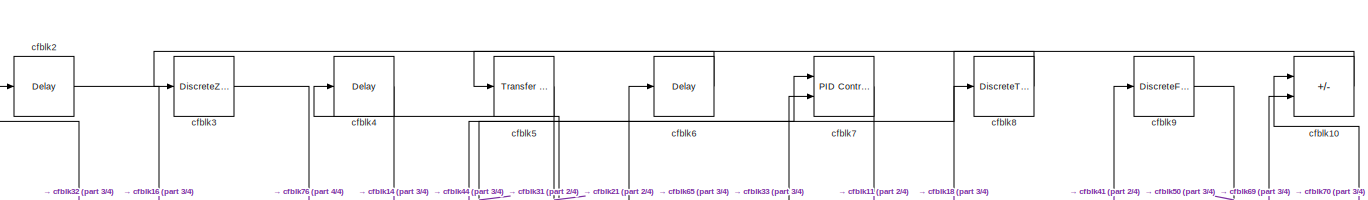
[diagram: root canvas - part 1/4, full width, top band]
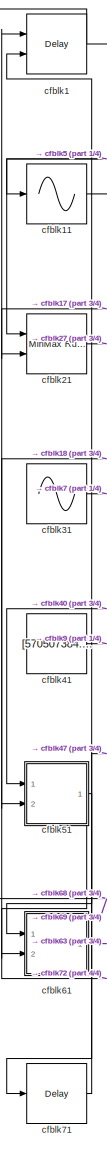
[diagram: root canvas - part 2/4, left side, full height]
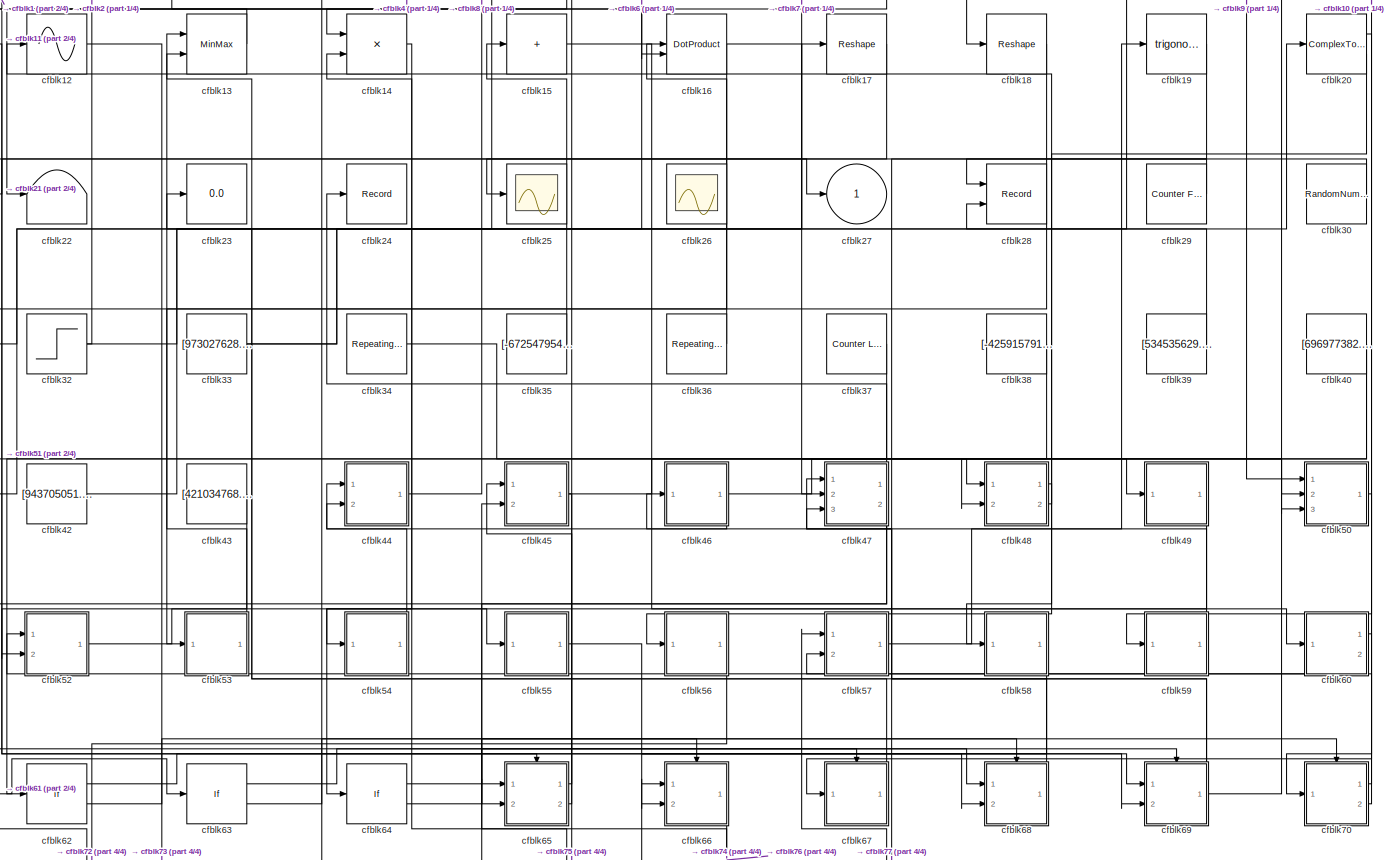
[diagram: root canvas - part 3/4, full width, middle band]
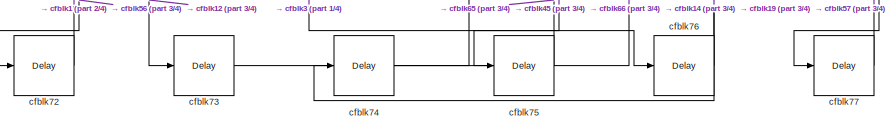
[diagram: root canvas - part 4/4, bottom center region]
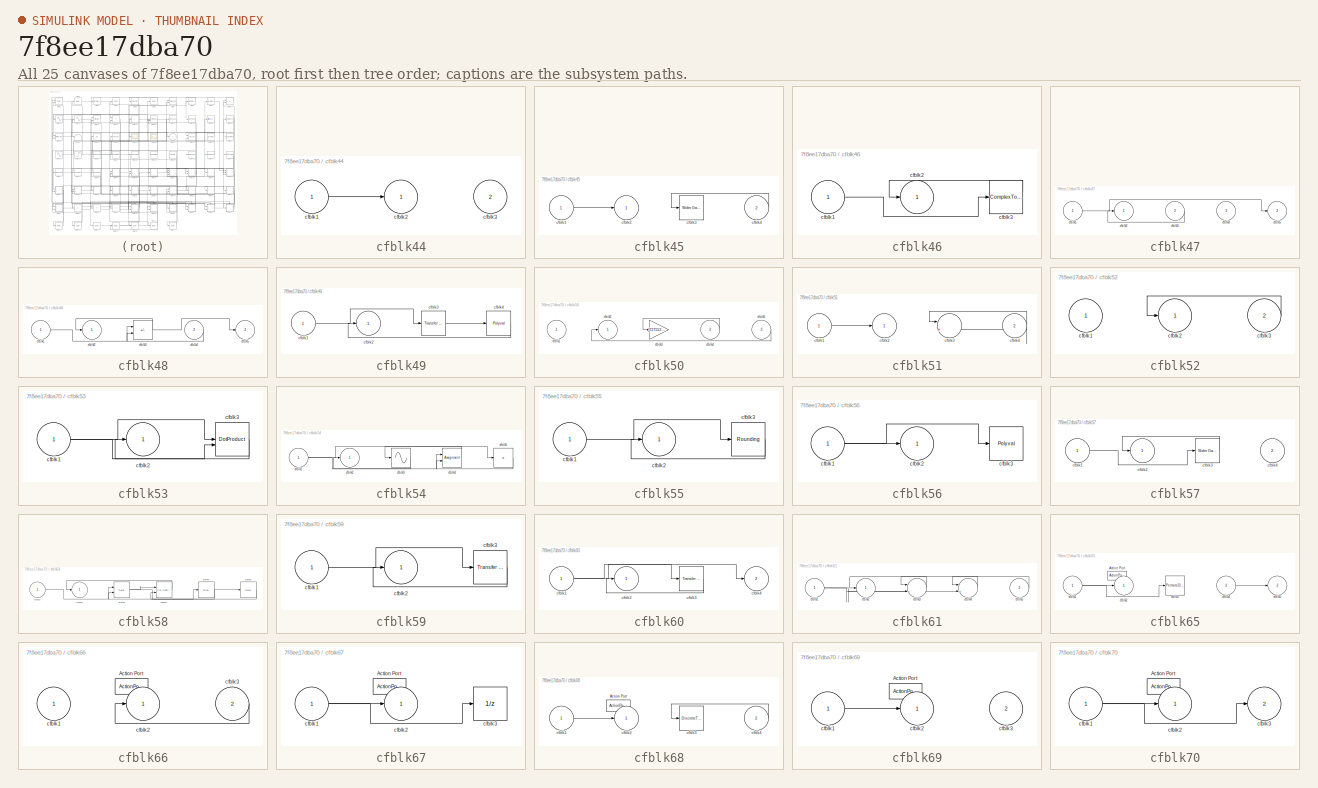
[diagram: thumbnail index - all 25 canvases of the model, root first then tree order]
MODEL slx_7f8ee17dba70
KIND model
CONFIG AbsTol = auto
CONFIG EnableMultiTasking = off
CONFIG FixedStep = auto
CONFIG MaxStep = auto
CONFIG MinStep = auto
CONFIG RelTol = 1e-3
CONFIG SampleTimeConstraint = Unconstrained
CONFIG SolverName = VariableStepAuto
CONFIG StartTime = 0.0
CONFIG StopTime = 10.0
BLOCK [Delay] cfblk1
  DelayLengthSource = Input port
  InputPortMap = u0,p1
  Ports = [2, 1]
  SampleTime = 1
BLOCK [Sum] cfblk10
  IconShape = rectangular
  Inputs = -+
  Ports = [2, 1]
BLOCK [Sin] cfblk11
  Ports = [1, 1]
  SampleTime = 0
  TimeSource = Use external signal
BLOCK [Sin] cfblk12
  Ports = [1, 1]
  SampleTime = 0
  TimeSource = Use external signal
BLOCK [MinMax] cfblk13
  Inputs = 2
  Ports = [2, 1]
BLOCK [Product] cfblk14
  Ports = [2, 1]
BLOCK [Sum] cfblk15
  IconShape = rectangular
  Inputs = +
  Ports = [1, 1]
BLOCK [DotProduct] cfblk16
  OutDataTypeStr = Inherit: Inherit via internal rule
BLOCK [Reshape] cfblk17
  Ports = [1, 1]
BLOCK [Reshape] cfblk18
  Ports = [1, 1]
BLOCK [Trigonometry] cfblk19
  Ports = [1, 1]
BLOCK [Delay] cfblk2
  InputPortMap = u0
  Ports = [1, 1]
  SampleTime = 1
BLOCK [ComplexToRealImag] cfblk20
  Ports = [1, 2]
BLOCK [Reference] cfblk21  REF=simulink/Math
Operations/MinMax
Running
Resettable
  Ports = [2, 1]
  SourceBlock = simulink/Math\nOperations/MinMax\nRunning\nResettable
  SourceProductBaseCode = SL
  SourceType = MinMax Running Resettable
BLOCK [Terminator] cfblk22
BLOCK [Display] cfblk23
  Decimation = 1
  Ports = [1]
BLOCK [Record] cfblk24
  FileSettingsInternal = {"entries":[{"content":{"excelSettings":{"content":{},"type":"Streamout.ExcelSettings"}},"type":"Streamout.FileSettingStorage","uuid":"f8e03bbd-3925-4cbe-a2d8-1c15d8116227"}],"packageUris":["http://schema.mathworks.com/mf0/streamout_blocks/R2020a"],"version":"1.0"}
  Ports = [1]
  SignalsInternal = {"entries":[{"content":{"signals":[{"content":{"blockPath":["sampleModel298/cfblk24"],"channel":[],"dimensions":[1],"domain":"sampleModel298/cfblk24","lineColor":"#a2142f","plots":[1],"port":1,"sid":[""],"signalID":12860,"signalName":"cfblk47:1"},"type":"RecordBlkView.Signal","uuid":"11e5b281-7313-45d0-8552-5ee48f4d8115"}]},"type":"RecordBlkView.InputSignals","uuid":"8eee72e8-d15a-4497-b3c0-09b01b...<+100ch>
  VisualizationBindings = {"sparklinesplugin":{"info":[{"bindingParametersList":[],"subplotID":1}]}}
BLOCK [Scope] cfblk25
  Floating = off
  NumInputPorts = 1
  Ports = [1]
BLOCK [Scope] cfblk26
  Floating = on
  NumInputPorts = 1
  Ports = []
BLOCK [Outport] cfblk27
BLOCK [Record] cfblk28
  CompatibilityTag = XY
  FileSettingsInternal = {"entries":[{"content":{"excelSettings":{"content":{},"type":"Streamout.ExcelSettings"}},"type":"Streamout.FileSettingStorage","uuid":"aa3ee1ba-3106-412b-81ca-2127dd02a330"}],"packageUris":["http://schema.mathworks.com/mf0/streamout_blocks/R2020a"],"version":"1.0"}
  Layout = [1 1]
  Ports = [2]
  SignalsInternal = {"entries":[{"content":{"signals":[{"content":{"blockPath":["sampleModel298/cfblk28"],"channel":[],"dimensions":[1],"domain":"sampleModel298/cfblk28","lineColor":"#a2142f","plots":[1],"port":1,"sid":[""],"signalID":12864,"signalName":"cfblk30"},"type":"RecordBlkView.Signal","uuid":"5ab1b331-6bbc-4e8d-9462-f5e53011d17e"},{"content":{"blockPath":["sampleModel298/cfblk28"],"channel":[],"dimensions":[...<+385ch>
  VisualizationBindings = {"xyplotplugin":{"info":[{"series":[{"bindingParametersList":[{"parameter":"X-Axis","signalID":12864,"signalName":"cfblk30"},{"parameter":"Y-Axis","signalID":12868,"signalName":"cfblk39"}],"seriesID":55334}],"subplotID":1}]}}
BLOCK [Reference] cfblk29  REF=simulink/Sources/Counter
Free-Running
  Ports = [0, 1]
  SourceBlock = simulink/Sources/Counter\nFree-Running
  SourceProductBaseCode = SL
  SourceType = Counter Free-Running
BLOCK [DiscreteZeroPole] cfblk3
  Gain = 1
  Poles = [0 0.5]
BLOCK [RandomNumber] cfblk30
  Mean = [-77149.220000]
  SampleTime = 0.1
  Seed = [340606104.000000]
  Variance = [41680.275805]
BLOCK [Sin] cfblk31
  Amplitude = [967904790.389444]
  Bias = [-694401713.764800]
  Ports = [0, 1]
  SampleTime = 0
BLOCK [Step] cfblk32
  After = [850693744.630323]
  Before = [-871235636.671696]
  SampleTime = 0
  Time = [28.000000]
BLOCK [Constant] cfblk33
  SampleTime = 1
  Value = [973027628.577768]
BLOCK [Reference] cfblk34  REF=simulink/Sources/Repeating
Sequence
  Ports = [0, 1]
  SourceBlock = simulink/Sources/Repeating\nSequence
  SourceProductBaseCode = SL
  SourceType = Repeating table
BLOCK [Constant] cfblk35
  SampleTime = 1
  Value = [-672547954.246681]
BLOCK [Reference] cfblk36  REF=simulink/Sources/Repeating
Sequence
Stair
  Ports = [0, 1]
  SourceBlock = simulink/Sources/Repeating\nSequence\nStair
  SourceProductBaseCode = SL
  SourceType = Repeating Sequence Stair
BLOCK [Reference] cfblk37  REF=simulink/Sources/Counter
Limited
  Ports = [0, 1]
  SourceBlock = simulink/Sources/Counter\nLimited
  SourceProductBaseCode = SL
  SourceType = Counter Limited
BLOCK [Constant] cfblk38
  SampleTime = 1
  Value = [-425915791.138406]
BLOCK [Constant] cfblk39
  SampleTime = 1
  Value = [534535629.068639]
BLOCK [Delay] cfblk4
  InputPortMap = u0
  Ports = [1, 1]
  SampleTime = 1
BLOCK [Constant] cfblk40
  SampleTime = 1
  Value = [696977382.694791]
BLOCK [Constant] cfblk41
  SampleTime = 1
  Value = [570507384.142809]
BLOCK [Constant] cfblk42
  SampleTime = 1
  Value = [943705051.567858]
BLOCK [Constant] cfblk43
  SampleTime = 1
  Value = [421034768.829689]
BLOCK [SubSystem] cfblk44
  Ports = [2, 1]
  RequestExecContextInheritance = off
BLOCK [Inport] cfblk44/cfblk1
BLOCK [Outport] cfblk44/cfblk2
BLOCK [Inport] cfblk44/cfblk3
  Port = 2
BLOCK [SubSystem] cfblk45
  Ports = [2, 1]
  RequestExecContextInheritance = off
BLOCK [Inport] cfblk45/cfblk1
BLOCK [Outport] cfblk45/cfblk2
BLOCK [Reference] cfblk45/cfblk3  REF=simulink/Math
Operations/Slider
Gain
  Ports = [1, 1]
  SourceBlock = simulink/Math\nOperations/Slider\nGain
  SourceProductBaseCode = SL
  SourceType = Slider Gain
BLOCK [Inport] cfblk45/cfblk4
  Port = 2
BLOCK [SubSystem] cfblk46
  Ports = [1, 1]
  RequestExecContextInheritance = off
BLOCK [Inport] cfblk46/cfblk1
BLOCK [Outport] cfblk46/cfblk2
BLOCK [ComplexToMagnitudeAngle] cfblk46/cfblk3
  Ports = [1, 2]
BLOCK [SubSystem] cfblk47
  Ports = [3, 2]
  RequestExecContextInheritance = off
BLOCK [Inport] cfblk47/cfblk1
BLOCK [Outport] cfblk47/cfblk2
BLOCK [Inport] cfblk47/cfblk3
  Port = 2
BLOCK [Inport] cfblk47/cfblk4
  Port = 3
BLOCK [Outport] cfblk47/cfblk5
  Port = 2
BLOCK [SubSystem] cfblk48
  Ports = [2, 2]
  RequestExecContextInheritance = off
BLOCK [Inport] cfblk48/cfblk1
BLOCK [Outport] cfblk48/cfblk2
BLOCK [Sum] cfblk48/cfblk3
  IconShape = rectangular
  Inputs = +-
  Ports = [2, 1]
BLOCK [Inport] cfblk48/cfblk4
  Port = 2
BLOCK [Outport] cfblk48/cfblk5
  Port = 2
BLOCK [SubSystem] cfblk49
  Ports = [1, 1]
  RequestExecContextInheritance = off
BLOCK [Inport] cfblk49/cfblk1
BLOCK [Outport] cfblk49/cfblk2
BLOCK [Reference] cfblk49/cfblk3  REF=simulink/Discrete/Transfer Fcn
Real Zero
  Ports = [1, 1]
  SourceBlock = simulink/Discrete/Transfer Fcn\nReal Zero
  SourceProductBaseCode = SL
  SourceType = Transfer Fcn Real Zero
BLOCK [Polyval] cfblk49/cfblk4
  Coefs = [ +2.081618890e-019, -1.441693666e-014, +4.719686976e-010, -8.536869453e-006, +1.621573104e-001, -8.087801117e+001 ]
BLOCK [Reference] cfblk5  REF=simulink/Discrete/Transfer Fcn
Real Zero
  Ports = [1, 1]
  SourceBlock = simulink/Discrete/Transfer Fcn\nReal Zero
  SourceProductBaseCode = SL
  SourceType = Transfer Fcn Real Zero
BLOCK [SubSystem] cfblk50
  Ports = [3, 1]
  RequestExecContextInheritance = off
BLOCK [Inport] cfblk50/cfblk1
BLOCK [Outport] cfblk50/cfblk2
BLOCK [Gain] cfblk50/cfblk3
  Gain = [727553593.715961]
BLOCK [Inport] cfblk50/cfblk4
  Port = 2
BLOCK [Inport] cfblk50/cfblk5
  Port = 3
BLOCK [SubSystem] cfblk51
  Ports = [2, 1]
  RequestExecContextInheritance = off
BLOCK [Inport] cfblk51/cfblk1
BLOCK [Outport] cfblk51/cfblk2
BLOCK [Sum] cfblk51/cfblk3
  Inputs = |++
  Ports = [2, 1]
BLOCK [Inport] cfblk51/cfblk4
  Port = 2
BLOCK [SubSystem] cfblk52
  Ports = [2, 1]
  RequestExecContextInheritance = off
BLOCK [Inport] cfblk52/cfblk1
BLOCK [Outport] cfblk52/cfblk2
BLOCK [Inport] cfblk52/cfblk3
  Port = 2
BLOCK [SubSystem] cfblk53
  Ports = [1, 1]
  RequestExecContextInheritance = off
BLOCK [Inport] cfblk53/cfblk1
BLOCK [Outport] cfblk53/cfblk2
BLOCK [DotProduct] cfblk53/cfblk3
  OutDataTypeStr = Inherit: Inherit via internal rule
BLOCK [SubSystem] cfblk54
  Ports = [1, 1]
  RequestExecContextInheritance = off
BLOCK [Inport] cfblk54/cfblk1
BLOCK [Outport] cfblk54/cfblk2
BLOCK [Sin] cfblk54/cfblk3
  Ports = [1, 1]
  SampleTime = 0
  TimeSource = Use external signal
BLOCK [Assignment] cfblk54/cfblk4
  DiagnosticForDimensions = Warning
  IndexOptions = Index vector (dialog)
  Indices = 1
  OutputSizes = 1
  Ports = [2, 1]
BLOCK [Product] cfblk54/cfblk5
  Inputs = *
  Ports = [1, 1]
BLOCK [SubSystem] cfblk55
  Ports = [1, 1]
  RequestExecContextInheritance = off
BLOCK [Inport] cfblk55/cfblk1
BLOCK [Outport] cfblk55/cfblk2
BLOCK [Rounding] cfblk55/cfblk3
BLOCK [SubSystem] cfblk56
  Ports = [1, 1]
  RequestExecContextInheritance = off
BLOCK [Inport] cfblk56/cfblk1
BLOCK [Outport] cfblk56/cfblk2
BLOCK [Polyval] cfblk56/cfblk3
  Coefs = [ +2.081618890e-019, -1.441693666e-014, +4.719686976e-010, -8.536869453e-006, +1.621573104e-001, -8.087801117e+001 ]
BLOCK [SubSystem] cfblk57
  Ports = [2, 1]
  RequestExecContextInheritance = off
BLOCK [Inport] cfblk57/cfblk1
BLOCK [Outport] cfblk57/cfblk2
BLOCK [Reference] cfblk57/cfblk3  REF=simulink/Math
Operations/Slider
Gain
  Ports = [1, 1]
  SourceBlock = simulink/Math\nOperations/Slider\nGain
  SourceProductBaseCode = SL
  SourceType = Slider Gain
BLOCK [Inport] cfblk57/cfblk4
  Port = 2
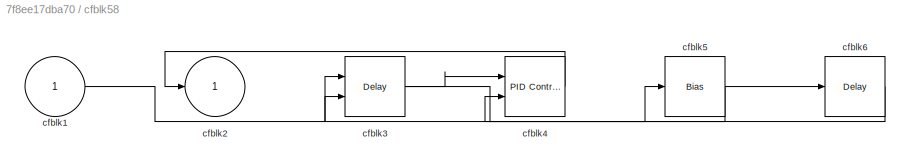
BLOCK [SubSystem] cfblk58
  Ports = [1, 1]
  RequestExecContextInheritance = off
BLOCK [Inport] cfblk58/cfblk1
BLOCK [Outport] cfblk58/cfblk2
BLOCK [Delay] cfblk58/cfblk3
  DelayLengthSource = Input port
  InputPortMap = u0,p1
  Ports = [2, 1]
  SampleTime = 1
BLOCK [Reference] cfblk58/cfblk4  REF=slpidlib/PID Controller (2DOF)
  Ports = [2, 1]
  SourceBlock = slpidlib/PID Controller (2DOF)
  SourceProductBaseCode = SL
  SourceType = PID 2dof
BLOCK [Bias] cfblk58/cfblk5
  Bias = [-670771605.954551]
  SaturateOnIntegerOverflow = off
BLOCK [Delay] cfblk58/cfblk6
  InputPortMap = u0
  Ports = [1, 1]
  SampleTime = 1
BLOCK [SubSystem] cfblk59
  Ports = [1, 1]
  RequestExecContextInheritance = off
BLOCK [Inport] cfblk59/cfblk1
BLOCK [Outport] cfblk59/cfblk2
BLOCK [Reference] cfblk59/cfblk3  REF=simulink/Discrete/Transfer Fcn
First Order
  Ports = [1, 1]
  SourceBlock = simulink/Discrete/Transfer Fcn\nFirst Order
  SourceProductBaseCode = SL
  SourceType = First Order Transfer Fcn
BLOCK [Delay] cfblk6
  InputPortMap = u0
  Ports = [1, 1]
  SampleTime = 1
BLOCK [SubSystem] cfblk60
  Ports = [1, 2]
  RequestExecContextInheritance = off
BLOCK [Inport] cfblk60/cfblk1
BLOCK [Outport] cfblk60/cfblk2
BLOCK [Reference] cfblk60/cfblk3  REF=simulink/Discrete/Transfer Fcn
Real Zero
  Ports = [1, 1]
  SourceBlock = simulink/Discrete/Transfer Fcn\nReal Zero
  SourceProductBaseCode = SL
  SourceType = Transfer Fcn Real Zero
BLOCK [Outport] cfblk60/cfblk4
  Port = 2
BLOCK [SubSystem] cfblk61
  Ports = [2, 1]
  RequestExecContextInheritance = off
BLOCK [Inport] cfblk61/cfblk1
BLOCK [Outport] cfblk61/cfblk2
BLOCK [Sum] cfblk61/cfblk3
  Inputs = |++
  Ports = [2, 1]
BLOCK [Sum] cfblk61/cfblk4
  Inputs = |++
  Ports = [2, 1]
BLOCK [Inport] cfblk61/cfblk5
  Port = 2
BLOCK [If] cfblk62
  IfExpression = u1 >= 0
  Ports = [1, 2]
  SampleTime = 1
BLOCK [If] cfblk63
  IfExpression = u1 >= 0
  Ports = [1, 2]
  SampleTime = 1
BLOCK [If] cfblk64
  IfExpression = u1 >= 0
  Ports = [1, 2]
  SampleTime = 1
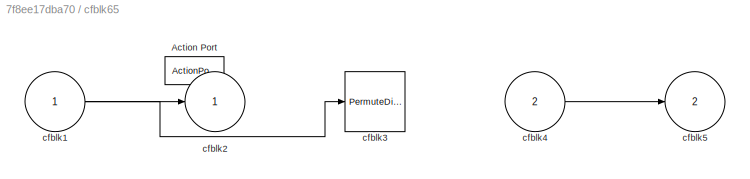
BLOCK [SubSystem] cfblk65
  Ports = [2, 2, 0, 0, 0, 0, 0, 1]
  RequestExecContextInheritance = off
  TreatAsAtomicUnit = on
BLOCK [ActionPort] cfblk65/Action Port
  ActionPortLabel = if(u1 >= 0)
BLOCK [Inport] cfblk65/cfblk1
BLOCK [Outport] cfblk65/cfblk2
BLOCK [PermuteDimensions] cfblk65/cfblk3
BLOCK [Inport] cfblk65/cfblk4
  Port = 2
BLOCK [Outport] cfblk65/cfblk5
  Port = 2
BLOCK [SubSystem] cfblk66
  Ports = [2, 1, 0, 0, 0, 0, 0, 1]
  RequestExecContextInheritance = off
  TreatAsAtomicUnit = on
BLOCK [ActionPort] cfblk66/Action Port
  ActionPortLabel = else
BLOCK [Inport] cfblk66/cfblk1
BLOCK [Outport] cfblk66/cfblk2
BLOCK [Inport] cfblk66/cfblk3
  Port = 2
BLOCK [SubSystem] cfblk67
  Ports = [1, 1, 0, 0, 0, 0, 0, 1]
  RequestExecContextInheritance = off
  TreatAsAtomicUnit = on
BLOCK [ActionPort] cfblk67/Action Port
  ActionPortLabel = if(u1 >= 0)
BLOCK [Inport] cfblk67/cfblk1
BLOCK [Outport] cfblk67/cfblk2
BLOCK [UnitDelay] cfblk67/cfblk3
  HasFrameUpgradeWarning = on
  SampleTime = -1
BLOCK [SubSystem] cfblk68
  Ports = [2, 1, 0, 0, 0, 0, 0, 1]
  RequestExecContextInheritance = off
  TreatAsAtomicUnit = on
BLOCK [ActionPort] cfblk68/Action Port
  ActionPortLabel = else
BLOCK [Inport] cfblk68/cfblk1
BLOCK [Outport] cfblk68/cfblk2
BLOCK [DiscreteTransferFcn] cfblk68/cfblk3
  InputPortMap = u0
  Ports = [1, 1]
BLOCK [Inport] cfblk68/cfblk4
  Port = 2
BLOCK [SubSystem] cfblk69
  Ports = [2, 1, 0, 0, 0, 0, 0, 1]
  RequestExecContextInheritance = off
  TreatAsAtomicUnit = on
BLOCK [ActionPort] cfblk69/Action Port
  ActionPortLabel = if(u1 >= 0)
BLOCK [Inport] cfblk69/cfblk1
BLOCK [Outport] cfblk69/cfblk2
BLOCK [Inport] cfblk69/cfblk3
  Port = 2
BLOCK [Reference] cfblk7  REF=slpidlib/PID Controller (2DOF)
  Ports = [2, 1]
  SourceBlock = slpidlib/PID Controller (2DOF)
  SourceProductBaseCode = SL
  SourceType = PID 2dof
BLOCK [SubSystem] cfblk70
  Ports = [1, 2, 0, 0, 0, 0, 0, 1]
  RequestExecContextInheritance = off
  TreatAsAtomicUnit = on
BLOCK [ActionPort] cfblk70/Action Port
  ActionPortLabel = else
BLOCK [Inport] cfblk70/cfblk1
BLOCK [Outport] cfblk70/cfblk2
BLOCK [Outport] cfblk70/cfblk3
  Port = 2
BLOCK [Delay] cfblk71
  InputPortMap = u0
  Ports = [1, 1]
  SampleTime = 1
BLOCK [Delay] cfblk72
  InputPortMap = u0
  Ports = [1, 1]
  SampleTime = 1
BLOCK [Delay] cfblk73
  InputPortMap = u0
  Ports = [1, 1]
  SampleTime = 1
BLOCK [Delay] cfblk74
  InputPortMap = u0
  Ports = [1, 1]
  SampleTime = 1
BLOCK [Delay] cfblk75
  InputPortMap = u0
  Ports = [1, 1]
  SampleTime = 1
BLOCK [Delay] cfblk76
  InputPortMap = u0
  Ports = [1, 1]
  SampleTime = 1
BLOCK [Delay] cfblk77
  InputPortMap = u0
  Ports = [1, 1]
  SampleTime = 1
BLOCK [DiscreteTransferFcn] cfblk8
  InputPortMap = u0
  Ports = [1, 1]
  SampleTime = 1
BLOCK [DiscreteFir] cfblk9
  InputPortMap = u0
  OutputPortMap = o0
  Ports = [1, 1]
  SampleTime = 1
LINE cfblk10:1 -> cfblk18:1
LINE cfblk11:1 -> cfblk69:1
LINE cfblk12:1 -> cfblk73:1
LINE cfblk13:1 -> cfblk22:1
LINE cfblk14:1 -> cfblk54:1
LINE cfblk15:1 -> cfblk60:1
NET cfblk16:1 -> cfblk50:3, cfblk53:1
LINE cfblk17:1 -> cfblk21:2
LINE cfblk18:1 -> cfblk51:2
LINE cfblk19:1 -> cfblk77:1
NET cfblk1:1 -> cfblk68:1, cfblk69:2
LINE cfblk20:1 -> cfblk59:1
LINE cfblk20:2 -> cfblk58:1
LINE cfblk21:1 -> cfblk27:1
LINE cfblk29:1 -> cfblk25:1
LINE cfblk2:1 -> cfblk16:2
LINE cfblk30:1 -> cfblk28:1
LINE cfblk31:1 -> cfblk7:1
NET cfblk32:1 -> cfblk17:1, cfblk2:1
NET cfblk33:1 -> cfblk6:1, cfblk7:2
LINE cfblk34:1 -> cfblk50:2
LINE cfblk35:1 -> cfblk15:1
LINE cfblk36:1 -> cfblk16:1
LINE cfblk37:1 -> cfblk62:1
LINE cfblk38:1 -> cfblk48:2
LINE cfblk39:1 -> cfblk28:2
LINE cfblk3:1 -> cfblk76:1
NET cfblk40:1 -> cfblk47:2, cfblk51:1
LINE cfblk41:1 -> cfblk9:1
LINE cfblk42:1 -> cfblk20:1
LINE cfblk43:1 -> cfblk52:2
LINE cfblk44/cfblk1:1 -> cfblk44/cfblk2:1
LINE cfblk44:1 -> cfblk8:1
LINE cfblk45/cfblk1:1 -> cfblk45/cfblk2:1
LINE cfblk45/cfblk4:1 -> cfblk45/cfblk3:1
NET cfblk45:1 -> cfblk48:1, cfblk75:1
LINE cfblk46/cfblk1:1 -> cfblk46/cfblk3:1
LINE cfblk46/cfblk3:1 -> cfblk46/cfblk2:1
NET cfblk46:1 -> cfblk44:2, cfblk49:1
LINE cfblk47/cfblk1:1 -> cfblk47/cfblk5:1
LINE cfblk47/cfblk3:1 -> cfblk47/cfblk2:1
LINE cfblk47:1 -> cfblk24:1
NET cfblk47:2 -> cfblk61:1, cfblk65:2
LINE cfblk48/cfblk1:1 -> cfblk48/cfblk3:1
NET cfblk48/cfblk3:1 -> cfblk48/cfblk2:1, cfblk48/cfblk5:1
LINE cfblk48/cfblk4:1 -> cfblk48/cfblk3:2
LINE cfblk48:1 -> cfblk56:1
LINE cfblk48:2 -> cfblk12:1
LINE cfblk49/cfblk1:1 -> cfblk49/cfblk3:1
LINE cfblk49/cfblk3:1 -> cfblk49/cfblk4:1
LINE cfblk49/cfblk4:1 -> cfblk49/cfblk2:1
LINE cfblk49:1 -> cfblk64:1
LINE cfblk4:1 -> cfblk14:1
LINE cfblk50/cfblk4:1 -> cfblk50/cfblk3:1
LINE cfblk50/cfblk5:1 -> cfblk50/cfblk2:1
LINE cfblk50:1 -> cfblk70:1
LINE cfblk51/cfblk1:1 -> cfblk51/cfblk2:1
NET cfblk51/cfblk4:1 -> cfblk51/cfblk3:1, cfblk51/cfblk3:2
NET cfblk51:1 -> cfblk61:2, cfblk71:1
LINE cfblk52/cfblk3:1 -> cfblk52/cfblk2:1
LINE cfblk52:1 -> cfblk55:1
NET cfblk53/cfblk1:1 -> cfblk53/cfblk3:1, cfblk53/cfblk3:2
LINE cfblk53/cfblk3:1 -> cfblk53/cfblk2:1
LINE cfblk53:1 -> cfblk13:1
NET cfblk54/cfblk1:1 -> cfblk54/cfblk4:2, cfblk54/cfblk5:1
LINE cfblk54/cfblk3:1 -> cfblk54/cfblk2:1
LINE cfblk54/cfblk4:1 -> cfblk54/cfblk3:1
LINE cfblk54/cfblk5:1 -> cfblk54/cfblk4:1
LINE cfblk54:1 -> cfblk44:1
LINE cfblk55/cfblk1:1 -> cfblk55/cfblk3:1
LINE cfblk55/cfblk3:1 -> cfblk55/cfblk2:1
LINE cfblk55:1 -> cfblk68:2
NET cfblk56/cfblk1:1 -> cfblk56/cfblk2:1, cfblk56/cfblk3:1
LINE cfblk56:1 -> cfblk72:1
LINE cfblk57/cfblk1:1 -> cfblk57/cfblk3:1
LINE cfblk57/cfblk3:1 -> cfblk57/cfblk2:1
LINE cfblk57:1 -> cfblk19:1
LINE cfblk58/cfblk1:1 -> cfblk58/cfblk3:1
NET cfblk58/cfblk3:1 -> cfblk58/cfblk4:1, cfblk58/cfblk5:1
LINE cfblk58/cfblk4:1 -> cfblk58/cfblk2:1
NET cfblk58/cfblk5:1 -> cfblk58/cfblk4:2, cfblk58/cfblk6:1
LINE cfblk58/cfblk6:1 -> cfblk58/cfblk3:2
LINE cfblk58:1 -> cfblk66:2
LINE cfblk59/cfblk1:1 -> cfblk59/cfblk3:1
LINE cfblk59/cfblk3:1 -> cfblk59/cfblk2:1
LINE cfblk59:1 -> cfblk46:1
LINE cfblk5:1 -> cfblk21:1
NET cfblk60/cfblk1:1 -> cfblk60/cfblk3:1, cfblk60/cfblk4:1
LINE cfblk60/cfblk3:1 -> cfblk60/cfblk2:1
LINE cfblk60:1 -> cfblk67:1
LINE cfblk60:2 -> cfblk57:2
NET cfblk61/cfblk1:1 -> cfblk61/cfblk3:2, cfblk61/cfblk4:2
LINE cfblk61/cfblk3:1 -> cfblk61/cfblk2:1
LINE cfblk61/cfblk4:1 -> cfblk61/cfblk3:1
LINE cfblk61/cfblk5:1 -> cfblk61/cfblk4:1
LINE cfblk61:1 -> cfblk63:1
LINE cfblk62:1 -> cfblk65:ifaction
LINE cfblk62:2 -> cfblk66:ifaction
LINE cfblk63:1 -> cfblk67:ifaction
LINE cfblk63:2 -> cfblk68:ifaction
LINE cfblk64:1 -> cfblk69:ifaction
LINE cfblk64:2 -> cfblk70:ifaction
NET cfblk65/cfblk1:1 -> cfblk65/cfblk2:1, cfblk65/cfblk3:1
LINE cfblk65/cfblk4:1 -> cfblk65/cfblk5:1
LINE cfblk65:1 -> cfblk45:1
LINE cfblk65:2 -> cfblk4:1
LINE cfblk66/cfblk3:1 -> cfblk66/cfblk2:1
LINE cfblk66:1 -> cfblk74:1
NET cfblk67/cfblk1:1 -> cfblk67/cfblk2:1, cfblk67/cfblk3:1
LINE cfblk67:1 -> cfblk23:1
LINE cfblk68/cfblk1:1 -> cfblk68/cfblk2:1
LINE cfblk68/cfblk4:1 -> cfblk68/cfblk3:1
LINE cfblk68:1 -> cfblk13:2
LINE cfblk69/cfblk1:1 -> cfblk69/cfblk2:1
NET cfblk69:1 -> cfblk10:2, cfblk47:1, cfblk47:3
LINE cfblk6:1 -> cfblk5:1
NET cfblk70/cfblk1:1 -> cfblk70/cfblk2:1, cfblk70/cfblk3:1
LINE cfblk70:1 -> cfblk10:1
LINE cfblk70:2 -> cfblk52:1
LINE cfblk71:1 -> cfblk1:2
LINE cfblk72:1 -> cfblk1:1
LINE cfblk73:1 -> cfblk66:1
LINE cfblk74:1 -> cfblk45:2
LINE cfblk75:1 -> cfblk65:1
LINE cfblk76:1 -> cfblk14:2
LINE cfblk77:1 -> cfblk57:1
LINE cfblk7:1 -> cfblk11:1
LINE cfblk8:1 -> cfblk3:1
LINE cfblk9:1 -> cfblk50:1
note: NET lines group one-source signal fan-out (src -> all destinations, sorted); 1:1 wires keep LINE
